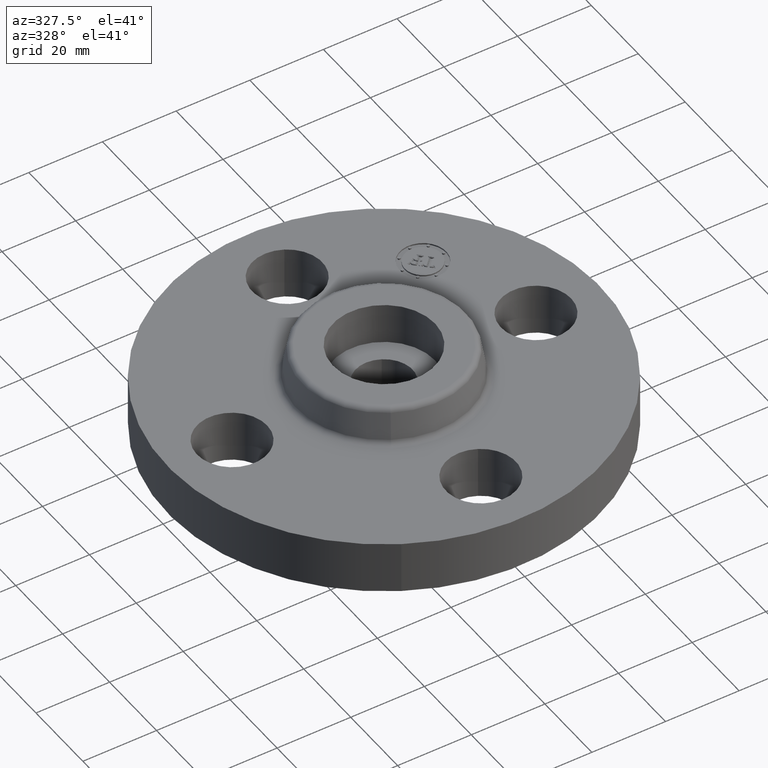
[diagram: clean part render]
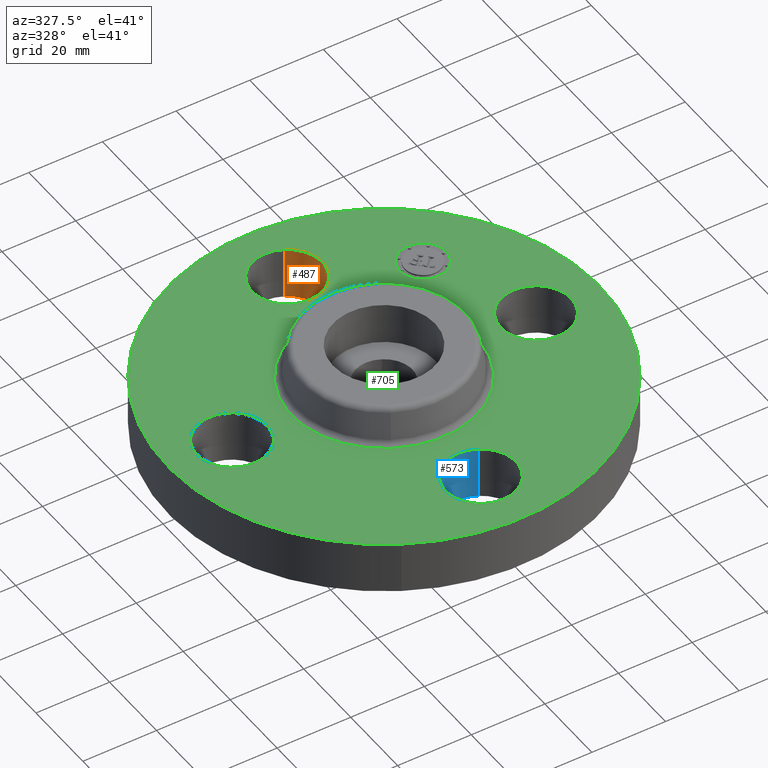
[diagram: same view with three faces highlighted in distinct colors, each labeled with its STEP entity id]
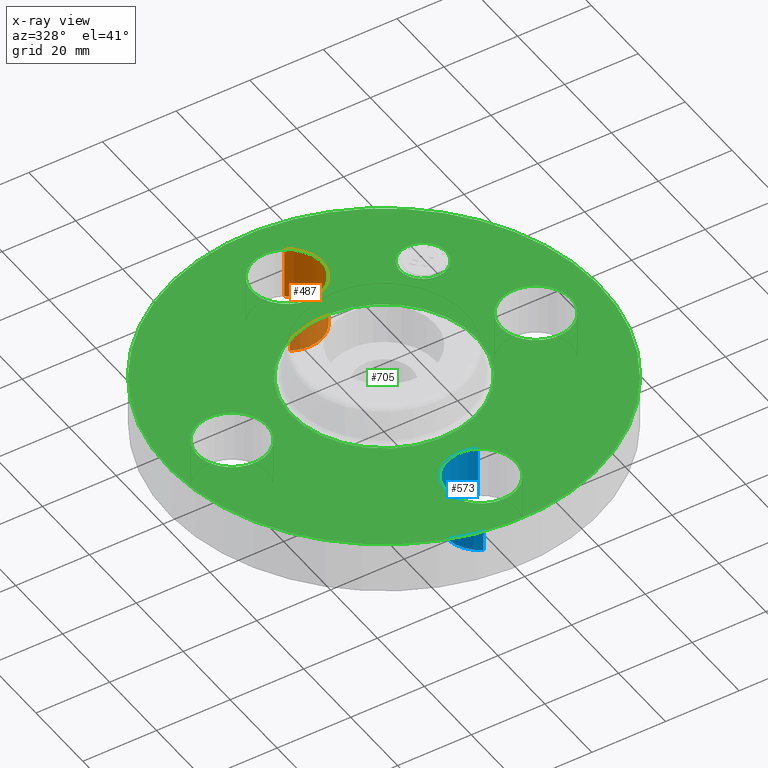
[diagram: x-ray of the same camera — body ghosted, the three highlighted faces saturated]
A machine part, auxiliary view with three faces highlighted in distinct colors.
The next image is the same camera in x-ray (body ghosted, the three faces saturated) — at least one of them is partly hidden behind the body in this view.
Their STEP definitions:

[orange] entity #487 — the highlighted cylindrical surface (partial cylindrical patch) has radius 9.525 mm, axis along (0, 0, -1).
#235=AXIS2_PLACEMENT_3D('Circle Axis2P3D',#233,#234,$) ;
#460=AXIS2_PLACEMENT_3D('Cylinder Axis2P3D',#457,#458,#459) ;
#478=AXIS2_PLACEMENT_3D('Circle Axis2P3D',#476,#477,$) ;
#228=CARTESIAN_POINT('Vertex',(-0.179784576977,1.2959065393,0.)) ;
#230=CARTESIAN_POINT('Vertex',(0.179784576977,1.95409346072,0.)) ;
#233=CARTESIAN_POINT('Axis2P3D Location',(-2.44773580232E-016,1.62500000001,0.)) ;
#457=CARTESIAN_POINT('Axis2P3D Location',(-2.98507657293E-016,1.62500000001,0.556062992128)) ;
#462=CARTESIAN_POINT('Line Origine',(0.179784576977,1.95409346072,0.280000000001)) ;
#466=CARTESIAN_POINT('Vertex',(0.179784576977,1.95409346072,0.560000000002)) ;
#469=CARTESIAN_POINT('Line Origine',(-0.179784576977,1.2959065393,0.280000000001)) ;
#473=CARTESIAN_POINT('Vertex',(-0.179784576977,1.2959065393,0.560000000002)) ;
#476=CARTESIAN_POINT('Axis2P3D Location',(-2.98507657293E-016,1.62500000001,0.560000000002)) ;
#234=DIRECTION('Axis2P3D Direction',(0.,0.,-0.0393700787402)) ;
#458=DIRECTION('Axis2P3D Direction',(0.,0.,-0.0393700787402)) ;
#459=DIRECTION('Axis2P3D XDirection',(-0.0188750212049,-0.0345504945626,-0.)) ;
#463=DIRECTION('Vector Direction',(0.,0.,-0.0393700787402)) ;
#470=DIRECTION('Vector Direction',(0.,0.,-0.0393700787402)) ;
#477=DIRECTION('Axis2P3D Direction',(0.,0.,-0.0393700787402)) ;
#464=VECTOR('Line Direction',#463,0.0393700787402) ;
#471=VECTOR('Line Direction',#470,0.0393700787402) ;
#482=ORIENTED_EDGE('',*,*,#468,.F.) ;
#483=ORIENTED_EDGE('',*,*,#237,.T.) ;
#484=ORIENTED_EDGE('',*,*,#475,.T.) ;
#485=ORIENTED_EDGE('',*,*,#480,.F.) ;
#487=ADVANCED_FACE('PartBody',(#486),#461,.F.) ;
#236=CIRCLE('generated circle',#235,0.375000000001) ;
#479=CIRCLE('generated circle',#478,0.375000000001) ;
#461=CYLINDRICAL_SURFACE('generated cylinder',#460,0.375000000001) ;
#237=EDGE_CURVE('',#231,#229,#236,.T.) ;
#468=EDGE_CURVE('',#231,#467,#465,.F.) ;
#475=EDGE_CURVE('',#229,#474,#472,.F.) ;
#480=EDGE_CURVE('',#467,#474,#479,.T.) ;
#481=EDGE_LOOP('',(#482,#483,#484,#485)) ;
#486=FACE_OUTER_BOUND('',#481,.T.) ;
#465=LINE('Line',#462,#464) ;
#472=LINE('Line',#469,#471) ;
#229=VERTEX_POINT('',#228) ;
#231=VERTEX_POINT('',#230) ;
#467=VERTEX_POINT('',#466) ;
#474=VERTEX_POINT('',#473) ;

[blue] entity #573 — the highlighted cylindrical surface (partial cylindrical patch) has radius 9.525 mm, axis along (0, -0, -1).
#199=AXIS2_PLACEMENT_3D('Circle Axis2P3D',#197,#198,$) ;
#546=AXIS2_PLACEMENT_3D('Cylinder Axis2P3D',#543,#544,#545) ;
#564=AXIS2_PLACEMENT_3D('Circle Axis2P3D',#562,#563,$) ;
#192=CARTESIAN_POINT('Vertex',(0.179784576977,-1.2959065393,0.)) ;
#194=CARTESIAN_POINT('Vertex',(-0.179784576977,-1.95409346072,0.)) ;
#197=CARTESIAN_POINT('Axis2P3D Location',(-2.79741234551E-016,-1.62500000001,0.)) ;
#543=CARTESIAN_POINT('Axis2P3D Location',(-1.8023868212E-016,-1.62500000001,0.556062992128)) ;
#548=CARTESIAN_POINT('Line Origine',(-0.179784576977,-1.95409346072,0.280000000001)) ;
#552=CARTESIAN_POINT('Vertex',(-0.179784576977,-1.95409346072,0.560000000002)) ;
#555=CARTESIAN_POINT('Line Origine',(0.179784576977,-1.2959065393,0.280000000001)) ;
#559=CARTESIAN_POINT('Vertex',(0.179784576977,-1.2959065393,0.560000000002)) ;
#562=CARTESIAN_POINT('Axis2P3D Location',(-1.8023868212E-016,-1.62500000001,0.560000000002)) ;
#198=DIRECTION('Axis2P3D Direction',(0.,0.,-0.0393700787402)) ;
#544=DIRECTION('Axis2P3D Direction',(0.,-0.,-0.0393700787402)) ;
#545=DIRECTION('Axis2P3D XDirection',(0.0188750212049,0.0345504945626,-0.)) ;
#549=DIRECTION('Vector Direction',(0.,0.,-0.0393700787402)) ;
#556=DIRECTION('Vector Direction',(0.,0.,-0.0393700787402)) ;
#563=DIRECTION('Axis2P3D Direction',(0.,-0.,-0.0393700787402)) ;
#550=VECTOR('Line Direction',#549,0.0393700787402) ;
#557=VECTOR('Line Direction',#556,0.0393700787402) ;
#568=ORIENTED_EDGE('',*,*,#554,.F.) ;
#569=ORIENTED_EDGE('',*,*,#201,.T.) ;
#570=ORIENTED_EDGE('',*,*,#561,.T.) ;
#571=ORIENTED_EDGE('',*,*,#566,.F.) ;
#573=ADVANCED_FACE('PartBody',(#572),#547,.F.) ;
#200=CIRCLE('generated circle',#199,0.375000000001) ;
#565=CIRCLE('generated circle',#564,0.375000000001) ;
#547=CYLINDRICAL_SURFACE('generated cylinder',#546,0.375000000001) ;
#201=EDGE_CURVE('',#195,#193,#200,.T.) ;
#554=EDGE_CURVE('',#195,#553,#551,.F.) ;
#561=EDGE_CURVE('',#193,#560,#558,.F.) ;
#566=EDGE_CURVE('',#553,#560,#565,.T.) ;
#567=EDGE_LOOP('',(#568,#569,#570,#571)) ;
#572=FACE_OUTER_BOUND('',#567,.T.) ;
#551=LINE('Line',#548,#550) ;
#558=LINE('Line',#555,#557) ;
#193=VERTEX_POINT('',#192) ;
#195=VERTEX_POINT('',#194) ;
#553=VERTEX_POINT('',#552) ;
#560=VERTEX_POINT('',#559) ;

[green] entity #705 — the highlighted planar face has unit normal (0, 0, -1).
#257=AXIS2_PLACEMENT_3D('Circle Axis2P3D',#255,#256,$) ;
#276=AXIS2_PLACEMENT_3D('Circle Axis2P3D',#274,#275,$) ;
#293=AXIS2_PLACEMENT_3D('Circle Axis2P3D',#291,#292,$) ;
#328=AXIS2_PLACEMENT_3D('Circle Axis2P3D',#326,#327,$) ;
#478=AXIS2_PLACEMENT_3D('Circle Axis2P3D',#476,#477,$) ;
#490=AXIS2_PLACEMENT_3D('Circle Axis2P3D',#488,#489,$) ;
#521=AXIS2_PLACEMENT_3D('Circle Axis2P3D',#519,#520,$) ;
#533=AXIS2_PLACEMENT_3D('Circle Axis2P3D',#531,#532,$) ;
#564=AXIS2_PLACEMENT_3D('Circle Axis2P3D',#562,#563,$) ;
#576=AXIS2_PLACEMENT_3D('Circle Axis2P3D',#574,#575,$) ;
#607=AXIS2_PLACEMENT_3D('Circle Axis2P3D',#605,#606,$) ;
#619=AXIS2_PLACEMENT_3D('Circle Axis2P3D',#617,#618,$) ;
#661=AXIS2_PLACEMENT_3D('Plane Axis2P3D',#658,#659,#660) ;
#689=AXIS2_PLACEMENT_3D('Circle Axis2P3D',#687,#688,$) ;
#698=AXIS2_PLACEMENT_3D('Circle Axis2P3D',#696,#697,$) ;
#252=CARTESIAN_POINT('Vertex',(-1.10747299418,-2.02721571797,0.560000000002)) ;
#255=CARTESIAN_POINT('Axis2P3D Location',(0.,0.,0.560000000002)) ;
#259=CARTESIAN_POINT('Vertex',(1.10747299418,2.02721571797,0.560000000002)) ;
#274=CARTESIAN_POINT('Axis2P3D Location',(0.,0.,0.560000000002)) ;
#291=CARTESIAN_POINT('Axis2P3D Location',(0.,0.,0.560000000002)) ;
#295=CARTESIAN_POINT('Vertex',(0.474797153847,0.869110360421,0.560000000002)) ;
#297=CARTESIAN_POINT('Vertex',(-0.474797153847,-0.869110360421,0.560000000002)) ;
#326=CARTESIAN_POINT('Axis2P3D Location',(0.,0.,0.560000000002)) ;
#466=CARTESIAN_POINT('Vertex',(0.179784576977,1.95409346072,0.560000000002)) ;
#473=CARTESIAN_POINT('Vertex',(-0.179784576977,1.2959065393,0.560000000002)) ;
#476=CARTESIAN_POINT('Axis2P3D Location',(-2.98507657293E-016,1.62500000001,0.560000000002)) ;
#488=CARTESIAN_POINT('Axis2P3D Location',(-2.98507657293E-016,1.62500000001,0.560000000002)) ;
#509=CARTESIAN_POINT('Vertex',(-1.95409346072,0.179784576977,0.560000000002)) ;
#516=CARTESIAN_POINT('Vertex',(-1.2959065393,-0.179784576977,0.560000000002)) ;
#519=CARTESIAN_POINT('Axis2P3D Location',(-1.62500000001,-1.99005104862E-016,0.560000000002)) ;
#531=CARTESIAN_POINT('Axis2P3D Location',(-1.62500000001,-1.99005104862E-016,0.560000000002)) ;
#552=CARTESIAN_POINT('Vertex',(-0.179784576977,-1.95409346072,0.560000000002)) ;
#559=CARTESIAN_POINT('Vertex',(0.179784576977,-1.2959065393,0.560000000002)) ;
#562=CARTESIAN_POINT('Axis2P3D Location',(-1.8023868212E-016,-1.62500000001,0.560000000002)) ;
#574=CARTESIAN_POINT('Axis2P3D Location',(-1.8023868212E-016,-1.62500000001,0.560000000002)) ;
#595=CARTESIAN_POINT('Vertex',(1.2959065393,0.179784576977,0.560000000002)) ;
#602=CARTESIAN_POINT('Vertex',(1.95409346072,-0.179784576977,0.560000000002)) ;
#605=CARTESIAN_POINT('Axis2P3D Location',(1.62500000001,0.,0.560000000002)) ;
#617=CARTESIAN_POINT('Axis2P3D Location',(1.62500000001,0.,0.560000000002)) ;
#658=CARTESIAN_POINT('Axis2P3D Location',(0.,2.31000000001,0.560000000002)) ;
#687=CARTESIAN_POINT('Axis2P3D Location',(1.14904851943,1.14904851943,0.560000000002)) ;
#691=CARTESIAN_POINT('Vertex',(0.974039591088,1.32405744778,0.560000000002)) ;
#693=CARTESIAN_POINT('Vertex',(1.32405744778,0.974039591088,0.560000000002)) ;
#696=CARTESIAN_POINT('Axis2P3D Location',(1.14904851943,1.14904851943,0.560000000002)) ;
#256=DIRECTION('Axis2P3D Direction',(0.,0.,-0.0393700787402)) ;
#275=DIRECTION('Axis2P3D Direction',(0.,0.,-0.0393700787402)) ;
#292=DIRECTION('Axis2P3D Direction',(0.,0.,-0.0393700787402)) ;
#327=DIRECTION('Axis2P3D Direction',(0.,0.,-0.0393700787402)) ;
#477=DIRECTION('Axis2P3D Direction',(0.,0.,-0.0393700787402)) ;
#489=DIRECTION('Axis2P3D Direction',(0.,0.,-0.0393700787402)) ;
#520=DIRECTION('Axis2P3D Direction',(-0.,0.,-0.0393700787402)) ;
#532=DIRECTION('Axis2P3D Direction',(-0.,0.,-0.0393700787402)) ;
#563=DIRECTION('Axis2P3D Direction',(0.,-0.,-0.0393700787402)) ;
#575=DIRECTION('Axis2P3D Direction',(0.,-0.,-0.0393700787402)) ;
#606=DIRECTION('Axis2P3D Direction',(0.,-0.,-0.0393700787402)) ;
#618=DIRECTION('Axis2P3D Direction',(0.,-0.,-0.0393700787402)) ;
#659=DIRECTION('Axis2P3D Direction',(0.,0.,-0.0393700787402)) ;
#660=DIRECTION('Axis2P3D XDirection',(0.0393700787402,0.,0.)) ;
#688=DIRECTION('Axis2P3D Direction',(0.,0.,-0.0393700787402)) ;
#697=DIRECTION('Axis2P3D Direction',(0.,0.,-0.0393700787402)) ;
#664=ORIENTED_EDGE('',*,*,#278,.F.) ;
#665=ORIENTED_EDGE('',*,*,#261,.F.) ;
#668=ORIENTED_EDGE('',*,*,#609,.T.) ;
#669=ORIENTED_EDGE('',*,*,#621,.T.) ;
#672=ORIENTED_EDGE('',*,*,#330,.T.) ;
#673=ORIENTED_EDGE('',*,*,#299,.T.) ;
#676=ORIENTED_EDGE('',*,*,#566,.T.) ;
#677=ORIENTED_EDGE('',*,*,#578,.T.) ;
#680=ORIENTED_EDGE('',*,*,#523,.T.) ;
#681=ORIENTED_EDGE('',*,*,#535,.T.) ;
#684=ORIENTED_EDGE('',*,*,#480,.T.) ;
#685=ORIENTED_EDGE('',*,*,#492,.T.) ;
#702=ORIENTED_EDGE('',*,*,#695,.T.) ;
#703=ORIENTED_EDGE('',*,*,#700,.T.) ;
#670=FACE_BOUND('',#667,.T.) ;
#674=FACE_BOUND('',#671,.T.) ;
#678=FACE_BOUND('',#675,.T.) ;
#682=FACE_BOUND('',#679,.T.) ;
#686=FACE_BOUND('',#683,.T.) ;
#704=FACE_BOUND('',#701,.T.) ;
#705=ADVANCED_FACE('PartBody',(#666,#670,#674,#678,#682,#686,#704),#662,.F.) ;
#258=CIRCLE('generated circle',#257,2.31000000001) ;
#277=CIRCLE('generated circle',#276,2.31000000001) ;
#294=CIRCLE('generated circle',#293,0.990345977875) ;
#329=CIRCLE('generated circle',#328,0.990345977875) ;
#479=CIRCLE('generated circle',#478,0.375000000001) ;
#491=CIRCLE('generated circle',#490,0.375000000001) ;
#522=CIRCLE('generated circle',#521,0.375000000002) ;
#534=CIRCLE('generated circle',#533,0.375000000002) ;
#565=CIRCLE('generated circle',#564,0.375000000001) ;
#577=CIRCLE('generated circle',#576,0.375000000001) ;
#608=CIRCLE('generated circle',#607,0.375000000001) ;
#620=CIRCLE('generated circle',#619,0.375000000001) ;
#690=CIRCLE('generated circle',#689,0.247500000001) ;
#699=CIRCLE('generated circle',#698,0.247500000001) ;
#261=EDGE_CURVE('',#253,#260,#258,.T.) ;
#278=EDGE_CURVE('',#260,#253,#277,.T.) ;
#299=EDGE_CURVE('',#296,#298,#294,.T.) ;
#330=EDGE_CURVE('',#298,#296,#329,.T.) ;
#480=EDGE_CURVE('',#467,#474,#479,.T.) ;
#492=EDGE_CURVE('',#474,#467,#491,.T.) ;
#523=EDGE_CURVE('',#510,#517,#522,.T.) ;
#535=EDGE_CURVE('',#517,#510,#534,.T.) ;
#566=EDGE_CURVE('',#553,#560,#565,.T.) ;
#578=EDGE_CURVE('',#560,#553,#577,.T.) ;
#609=EDGE_CURVE('',#596,#603,#608,.T.) ;
#621=EDGE_CURVE('',#603,#596,#620,.T.) ;
#695=EDGE_CURVE('',#692,#694,#690,.T.) ;
#700=EDGE_CURVE('',#694,#692,#699,.T.) ;
#663=EDGE_LOOP('',(#664,#665)) ;
#667=EDGE_LOOP('',(#668,#669)) ;
#671=EDGE_LOOP('',(#672,#673)) ;
#675=EDGE_LOOP('',(#676,#677)) ;
#679=EDGE_LOOP('',(#680,#681)) ;
#683=EDGE_LOOP('',(#684,#685)) ;
#701=EDGE_LOOP('',(#702,#703)) ;
#666=FACE_OUTER_BOUND('',#663,.T.) ;
#662=PLANE('',#661) ;
#253=VERTEX_POINT('',#252) ;
#260=VERTEX_POINT('',#259) ;
#296=VERTEX_POINT('',#295) ;
#298=VERTEX_POINT('',#297) ;
#467=VERTEX_POINT('',#466) ;
#474=VERTEX_POINT('',#473) ;
#510=VERTEX_POINT('',#509) ;
#517=VERTEX_POINT('',#516) ;
#553=VERTEX_POINT('',#552) ;
#560=VERTEX_POINT('',#559) ;
#596=VERTEX_POINT('',#595) ;
#603=VERTEX_POINT('',#602) ;
#692=VERTEX_POINT('',#691) ;
#694=VERTEX_POINT('',#693) ;